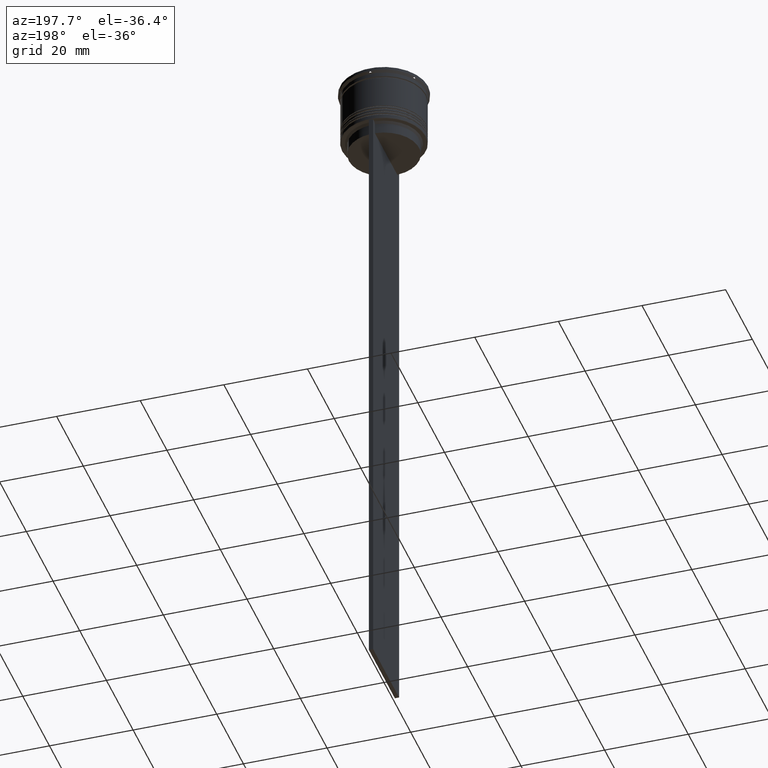
[diagram: clean part render]
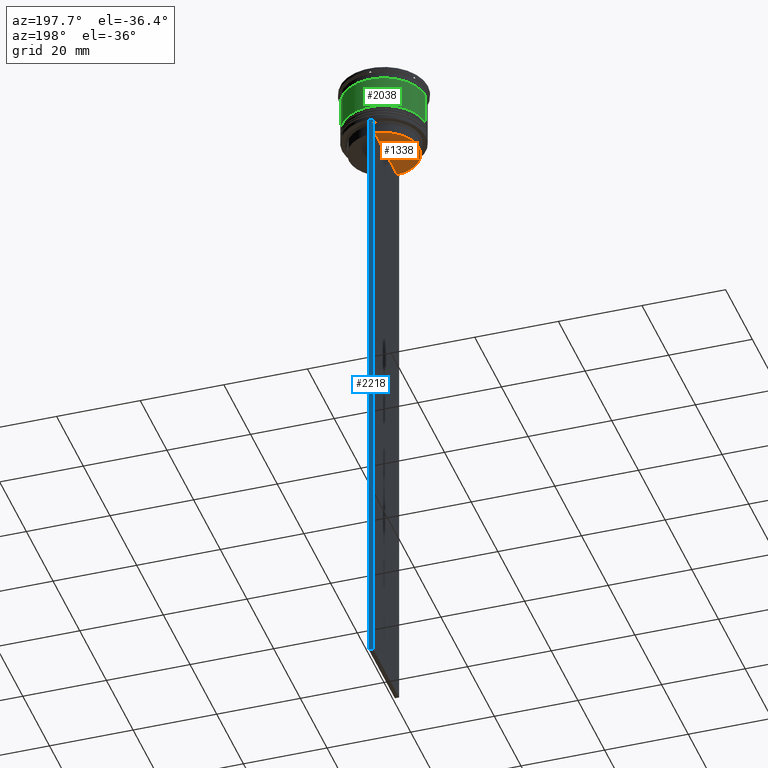
[diagram: same view with three faces highlighted in distinct colors, each labeled with its STEP entity id]
A machine part, auxiliary view with three faces highlighted in distinct colors.
Their STEP definitions:

[orange] entity #1338 — the highlighted planar face has unit normal (0, -0, 1).
#120 = CARTESIAN_POINT ( 'NONE',  ( 0.000000000000000000, 0.000000000000000000, -17.00000000000000000 ) ) ;
#321 = CARTESIAN_POINT ( 'NONE',  ( -0.5000000000000001110, -8.385105843100616241, -17.00000000000000000 ) ) ;
#341 = PLANE ( 'NONE',  #1673 ) ;
#372 = DIRECTION ( 'NONE',  ( 1.000000000000000000, 0.000000000000000000, 0.000000000000000000 ) ) ;
#421 = DIRECTION ( 'NONE',  ( 0.000000000000000000, -1.000000000000000000, 0.000000000000000000 ) ) ;
#461 = DIRECTION ( 'NONE',  ( 1.000000000000000000, 0.000000000000000000, 0.000000000000000000 ) ) ;
#512 = EDGE_CURVE ( 'NONE', #682, #835, #800, .T. ) ;
#515 = DIRECTION ( 'NONE',  ( 0.000000000000000000, -0.000000000000000000, 1.000000000000000000 ) ) ;
#665 = EDGE_CURVE ( 'NONE', #682, #835, #1031, .T. ) ;
#682 = VERTEX_POINT ( 'NONE', #2278 ) ;
#800 = LINE ( 'NONE', #1809, #1328 ) ;
#835 = VERTEX_POINT ( 'NONE', #321 ) ;
#939 = ORIENTED_EDGE ( 'NONE', *, *, #512, .T. ) ;
#1031 = CIRCLE ( 'NONE', #1540, 8.400000000000003908 ) ;
#1080 = DIRECTION ( 'NONE',  ( -0.000000000000000000, -0.000000000000000000, 1.000000000000000000 ) ) ;
#1328 = VECTOR ( 'NONE', #421, 1000.000000000000000 ) ;
#1338 = ADVANCED_FACE ( 'NONE', ( #1758 ), #341, .F. ) ;
#1435 = ORIENTED_EDGE ( 'NONE', *, *, #665, .F. ) ;
#1540 = AXIS2_PLACEMENT_3D ( 'NONE', #120, #1080, #461 ) ;
#1673 = AXIS2_PLACEMENT_3D ( 'NONE', #2533, #515, #372 ) ;
#1758 = FACE_OUTER_BOUND ( 'NONE', #2461, .T. ) ;
#1809 = CARTESIAN_POINT ( 'NONE',  ( -0.5000000000000001110, 8.400000000000003908, -17.00000000000000000 ) ) ;
#2278 = CARTESIAN_POINT ( 'NONE',  ( -0.5000000000000001110, 8.385105843100616241, -17.00000000000000000 ) ) ;
#2461 = EDGE_LOOP ( 'NONE', ( #1435, #939 ) ) ;
#2533 = CARTESIAN_POINT ( 'NONE',  ( 0.000000000000000000, 8.400000000000003908, -17.00000000000000000 ) ) ;

[blue] entity #2218 — the highlighted planar face has unit normal (0, -1, -0).
#34 = VERTEX_POINT ( 'NONE', #1187 ) ;
#177 = CARTESIAN_POINT ( 'NONE',  ( 0.4999999999999998890, 9.750000000000001776, -14.00000000000000178 ) ) ;
#180 = VERTEX_POINT ( 'NONE', #2435 ) ;
#204 = CARTESIAN_POINT ( 'NONE',  ( -0.5000000000000001110, 9.750000000000001776, 5.525624189766635830 ) ) ;
#236 = DIRECTION ( 'NONE',  ( 0.000000000000000000, -1.000000000000000000, -0.000000000000000000 ) ) ;
#291 = EDGE_CURVE ( 'NONE', #1736, #180, #1890, .T. ) ;
#422 = ORIENTED_EDGE ( 'NONE', *, *, #2489, .T. ) ;
#482 = VECTOR ( 'NONE', #2304, 1000.000000000000000 ) ;
#547 = LINE ( 'NONE', #177, #2515 ) ;
#599 = EDGE_CURVE ( 'NONE', #1894, #1736, #1213, .T. ) ;
#614 = CARTESIAN_POINT ( 'NONE',  ( 0.4999999999999998890, 9.750000000000001776, 5.525624189766635830 ) ) ;
#619 = DIRECTION ( 'NONE',  ( 0.000000000000000000, 0.000000000000000000, -1.000000000000000000 ) ) ;
#740 = ORIENTED_EDGE ( 'NONE', *, *, #291, .T. ) ;
#1041 = CARTESIAN_POINT ( 'NONE',  ( 0.4999999999999998890, 9.750000000000001776, 5.525624189766635830 ) ) ;
#1187 = CARTESIAN_POINT ( 'NONE',  ( -0.5000000000000001110, 9.749999999999998224, -14.00000000000000178 ) ) ;
#1190 = LINE ( 'NONE', #204, #1911 ) ;
#1213 = LINE ( 'NONE', #1041, #2231 ) ;
#1376 = CARTESIAN_POINT ( 'NONE',  ( 0.4999999999999998890, 9.750000000000001776, -163.9999999999999716 ) ) ;
#1407 = DIRECTION ( 'NONE',  ( 0.000000000000000000, 0.000000000000000000, -1.000000000000000000 ) ) ;
#1420 = EDGE_CURVE ( 'NONE', #34, #180, #1190, .T. ) ;
#1426 = ORIENTED_EDGE ( 'NONE', *, *, #1420, .F. ) ;
#1736 = VERTEX_POINT ( 'NONE', #1376 ) ;
#1890 = LINE ( 'NONE', #2473, #482 ) ;
#1894 = VERTEX_POINT ( 'NONE', #2016 ) ;
#1911 = VECTOR ( 'NONE', #619, 1000.000000000000000 ) ;
#1944 = DIRECTION ( 'NONE',  ( 1.000000000000000000, 0.000000000000000000, 0.000000000000000000 ) ) ;
#2016 = CARTESIAN_POINT ( 'NONE',  ( 0.4999999999999998890, 9.750000000000001776, -14.00000000000000178 ) ) ;
#2028 = AXIS2_PLACEMENT_3D ( 'NONE', #614, #236, #2391 ) ;
#2044 = ORIENTED_EDGE ( 'NONE', *, *, #599, .T. ) ;
#2142 = EDGE_LOOP ( 'NONE', ( #1426, #422, #2044, #740 ) ) ;
#2211 = PLANE ( 'NONE',  #2028 ) ;
#2218 = ADVANCED_FACE ( 'NONE', ( #2428 ), #2211, .F. ) ;
#2231 = VECTOR ( 'NONE', #1407, 1000.000000000000000 ) ;
#2304 = DIRECTION ( 'NONE',  ( -1.000000000000000000, 0.000000000000000000, 0.000000000000000000 ) ) ;
#2391 = DIRECTION ( 'NONE',  ( 0.000000000000000000, 0.000000000000000000, -1.000000000000000000 ) ) ;
#2428 = FACE_OUTER_BOUND ( 'NONE', #2142, .T. ) ;
#2435 = CARTESIAN_POINT ( 'NONE',  ( -0.5000000000000001110, 9.750000000000001776, -163.9999999999999716 ) ) ;
#2473 = CARTESIAN_POINT ( 'NONE',  ( 0.4999999999999998890, 9.750000000000001776, -163.9999999999999716 ) ) ;
#2489 = EDGE_CURVE ( 'NONE', #34, #1894, #547, .T. ) ;
#2515 = VECTOR ( 'NONE', #1944, 1000.000000000000000 ) ;

[green] entity #2038 — the highlighted cylindrical surface (partial cylindrical patch) has radius 10 mm, axis along (-0, -0, 1).
#25 = ORIENTED_EDGE ( 'NONE', *, *, #2317, .T. ) ;
#140 = DIRECTION ( 'NONE',  ( -0.000000000000000000, -0.000000000000000000, 1.000000000000000000 ) ) ;
#157 = CARTESIAN_POINT ( 'NONE',  ( 0.000000000000000000, 0.000000000000000000, 0.000000000000000000 ) ) ;
#197 = DIRECTION ( 'NONE',  ( 1.000000000000000000, 0.000000000000000000, 0.000000000000000000 ) ) ;
#256 = ORIENTED_EDGE ( 'NONE', *, *, #2481, .F. ) ;
#356 = AXIS2_PLACEMENT_3D ( 'NONE', #458, #1233, #197 ) ;
#450 = AXIS2_PLACEMENT_3D ( 'NONE', #157, #2371, #967 ) ;
#458 = CARTESIAN_POINT ( 'NONE',  ( 0.000000000000000000, 0.000000000000000000, -10.50000000000000000 ) ) ;
#647 = CARTESIAN_POINT ( 'NONE',  ( 9.999999999999998224, 0.000000000000000000, -2.700000000000001954 ) ) ;
#727 = FACE_OUTER_BOUND ( 'NONE', #1742, .T. ) ;
#770 = CARTESIAN_POINT ( 'NONE',  ( -10.00000000000000178, 1.224646799147353454E-15, -10.50000000000000000 ) ) ;
#830 = VERTEX_POINT ( 'NONE', #770 ) ;
#967 = DIRECTION ( 'NONE',  ( 1.000000000000000000, 0.000000000000000000, 0.000000000000000000 ) ) ;
#1096 = CARTESIAN_POINT ( 'NONE',  ( 10.00000000000000178, 0.000000000000000000, -10.50000000000000000 ) ) ;
#1176 = LINE ( 'NONE', #1641, #1951 ) ;
#1177 = CARTESIAN_POINT ( 'NONE',  ( 0.000000000000000000, 0.000000000000000000, -2.700000000000001954 ) ) ;
#1204 = CIRCLE ( 'NONE', #1535, 9.999999999999998224 ) ;
#1233 = DIRECTION ( 'NONE',  ( -0.000000000000000000, -0.000000000000000000, 1.000000000000000000 ) ) ;
#1314 = EDGE_CURVE ( 'NONE', #830, #2145, #1769, .T. ) ;
#1334 = VECTOR ( 'NONE', #1745, 1000.000000000000000 ) ;
#1394 = EDGE_CURVE ( 'NONE', #1563, #2220, #1176, .T. ) ;
#1535 = AXIS2_PLACEMENT_3D ( 'NONE', #1177, #140, #2505 ) ;
#1563 = VERTEX_POINT ( 'NONE', #1096 ) ;
#1615 = DIRECTION ( 'NONE',  ( -0.000000000000000000, -0.000000000000000000, 1.000000000000000000 ) ) ;
#1641 = CARTESIAN_POINT ( 'NONE',  ( 10.00000000000000000, 0.000000000000000000, 0.000000000000000000 ) ) ;
#1738 = CARTESIAN_POINT ( 'NONE',  ( -9.999999999999998224, 1.224646799147353256E-15, -2.700000000000001954 ) ) ;
#1742 = EDGE_LOOP ( 'NONE', ( #25, #2086, #256, #2200 ) ) ;
#1745 = DIRECTION ( 'NONE',  ( -0.000000000000000000, -0.000000000000000000, 1.000000000000000000 ) ) ;
#1769 = LINE ( 'NONE', #2159, #1334 ) ;
#1950 = CYLINDRICAL_SURFACE ( 'NONE', #450, 10.00000000000000000 ) ;
#1951 = VECTOR ( 'NONE', #1615, 1000.000000000000000 ) ;
#2038 = ADVANCED_FACE ( 'NONE', ( #727 ), #1950, .T. ) ;
#2086 = ORIENTED_EDGE ( 'NONE', *, *, #1314, .T. ) ;
#2145 = VERTEX_POINT ( 'NONE', #1738 ) ;
#2159 = CARTESIAN_POINT ( 'NONE',  ( -10.00000000000000000, 1.224646799147353256E-15, 0.000000000000000000 ) ) ;
#2200 = ORIENTED_EDGE ( 'NONE', *, *, #1394, .F. ) ;
#2220 = VERTEX_POINT ( 'NONE', #647 ) ;
#2309 = CIRCLE ( 'NONE', #356, 10.00000000000000178 ) ;
#2317 = EDGE_CURVE ( 'NONE', #1563, #830, #2309, .T. ) ;
#2371 = DIRECTION ( 'NONE',  ( -0.000000000000000000, -0.000000000000000000, 1.000000000000000000 ) ) ;
#2481 = EDGE_CURVE ( 'NONE', #2220, #2145, #1204, .T. ) ;
#2505 = DIRECTION ( 'NONE',  ( 1.000000000000000000, 0.000000000000000000, 0.000000000000000000 ) ) ;